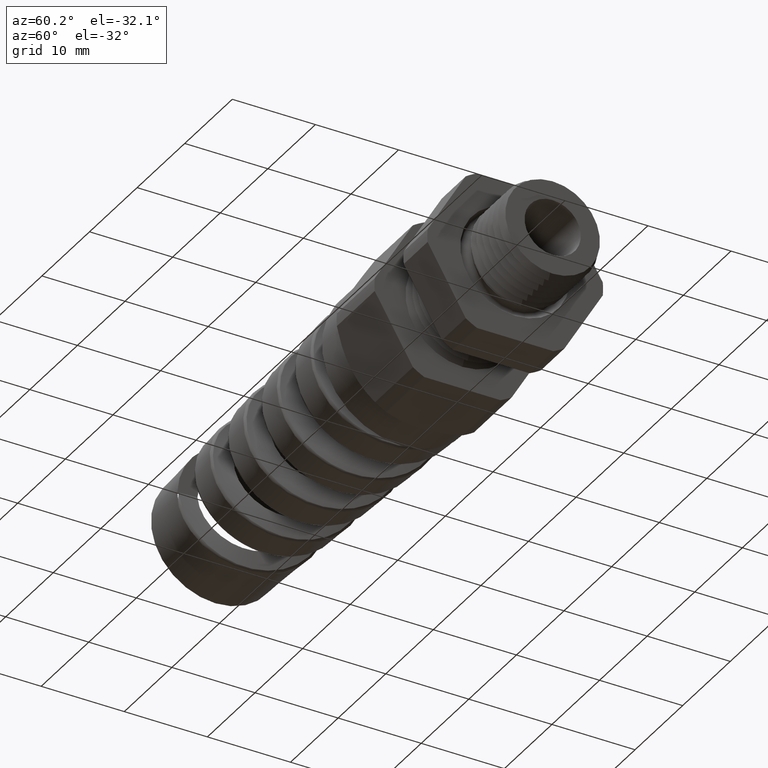
[diagram: clean part render]
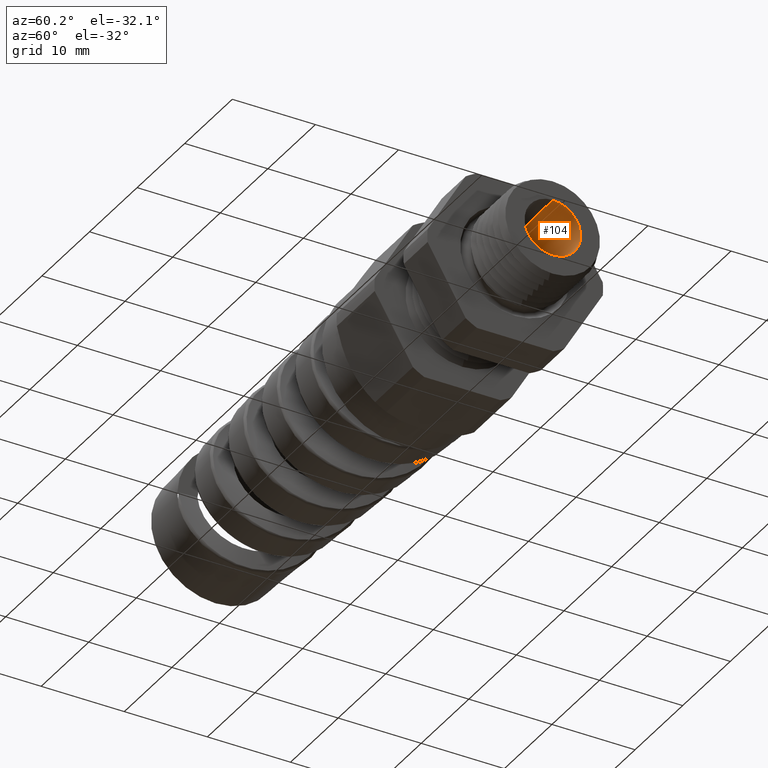
[diagram: same view with one face highlighted and labeled with its STEP entity id]
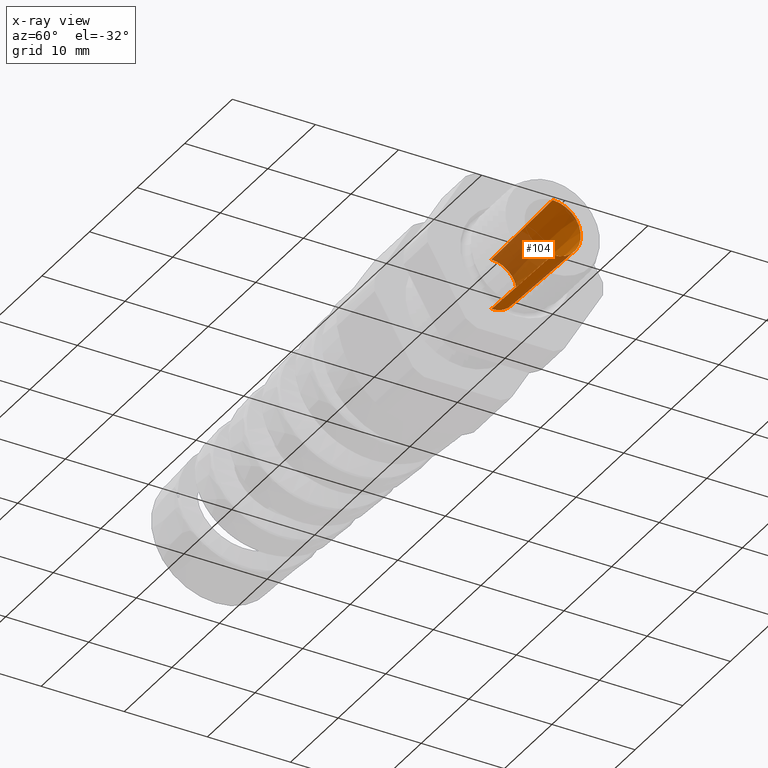
[diagram: x-ray of the same camera — body ghosted, the highlighted face saturated]
A machine part, auxiliary view. The second image highlights one B-rep face of the part: STEP entity #104.
The next image is the same camera in x-ray: the body ghosted, the highlighted face saturated — about 33% of this face is hidden behind the body in this view.
In plain terms, the highlighted conical surface has half-angle 1.5 deg.
Its self-contained STEP definition (entity closure, byte-faithful):
#99 = ORIENTED_EDGE ( 'NONE', *, *, #103, .F. ) ;
#100 = ORIENTED_EDGE ( 'NONE', *, *, #595, .F. ) ;
#101 = EDGE_LOOP ( 'NONE', ( #100, #99, #429, #133 ) ) ;
#103 = EDGE_CURVE ( 'NONE', #665, #591, #1021, .T. ) ;
#104 = ADVANCED_FACE ( 'NONE', ( #1022 ), #1013, .F. ) ;
#132 = EDGE_CURVE ( 'NONE', #658, #592, #1090, .T. ) ;
#133 = ORIENTED_EDGE ( 'NONE', *, *, #132, .T. ) ;
#429 = ORIENTED_EDGE ( 'NONE', *, *, #660, .T. ) ;
#591 = VERTEX_POINT ( 'NONE', #3348 ) ;
#592 = VERTEX_POINT ( 'NONE', #3347 ) ;
#595 = EDGE_CURVE ( 'NONE', #591, #592, #3345, .T. ) ;
#658 = VERTEX_POINT ( 'NONE', #3559 ) ;
#660 = EDGE_CURVE ( 'NONE', #665, #658, #3558, .T. ) ;
#665 = VERTEX_POINT ( 'NONE', #3601 ) ;
#1010 = DIRECTION ( 'NONE',  ( 0.0000000000000000000, 0.0000000000000000000, -1.000000000000000000 ) ) ;
#1011 = DIRECTION ( 'NONE',  ( 1.000000000000000000, 0.0000000000000000000, 0.0000000000000000000 ) ) ;
#1012 = AXIS2_PLACEMENT_3D ( 'NONE', #1015, #1011, #1010 ) ;
#1013 = CONICAL_SURFACE ( 'NONE', #1012, 0.1200000000000000000, 0.02617993877990812100 ) ;
#1015 = CARTESIAN_POINT ( 'NONE',  ( -0.5068503937007873300, 0.0000000000000000000, 0.0000000000000000000 ) ) ;
#1016 = DIRECTION ( 'NONE',  ( 0.0000000000000000000, 0.0000000000000000000, -1.000000000000000000 ) ) ;
#1017 = DIRECTION ( 'NONE',  ( 1.000000000000000000, 0.0000000000000000000, 0.0000000000000000000 ) ) ;
#1018 = CARTESIAN_POINT ( 'NONE',  ( -0.5068503937007873300, 0.0000000000000000000, 0.0000000000000000000 ) ) ;
#1019 = AXIS2_PLACEMENT_3D ( 'NONE', #1018, #1017, #1016 ) ;
#1021 = CIRCLE ( 'NONE', #1019, 0.1200000000000000000 ) ;
#1022 = FACE_OUTER_BOUND ( 'NONE', #101, .T. ) ;
#1087 = DIRECTION ( 'NONE',  ( 0.0000000000000000000, 0.0000000000000000000, -1.000000000000000000 ) ) ;
#1088 = DIRECTION ( 'NONE',  ( 1.000000000000000000, 0.0000000000000000000, 0.0000000000000000000 ) ) ;
#1089 = AXIS2_PLACEMENT_3D ( 'NONE', #1095, #1088, #1087 ) ;
#1090 = CIRCLE ( 'NONE', #1089, 0.1332723446567568900 ) ;
#1095 = CARTESIAN_POINT ( 'NONE',  ( -3.554250635557152700E-033, 0.0000000000000000000, 0.0000000000000000000 ) ) ;
#3342 = DIRECTION ( 'NONE',  ( 0.9996573249755573700, 3.205751595667422300E-018, 0.02617694830786633500 ) ) ;
#3343 = VECTOR ( 'NONE', #3342, 39.37007874015748100 ) ;
#3344 = CARTESIAN_POINT ( 'NONE',  ( -0.5068503937007873300, 1.469576158976823700E-017, 0.1200000000000000000 ) ) ;
#3345 = LINE ( 'NONE', #3344, #3343 ) ;
#3347 = CARTESIAN_POINT ( 'NONE',  ( -3.554250635557152700E-033, 1.632115502987601500E-017, 0.1332723446567568900 ) ) ;
#3348 = CARTESIAN_POINT ( 'NONE',  ( -0.5068503937007873300, 1.469576158976824000E-017, 0.1200000000000000200 ) ) ;
#3555 = DIRECTION ( 'NONE',  ( 0.9996573249755573700, 0.0000000000000000000, -0.02617694830786633500 ) ) ;
#3556 = VECTOR ( 'NONE', #3555, 39.37007874015748100 ) ;
#3557 = CARTESIAN_POINT ( 'NONE',  ( -0.5068503937007873300, 0.0000000000000000000, -0.1200000000000000000 ) ) ;
#3558 = LINE ( 'NONE', #3557, #3556 ) ;
#3559 = CARTESIAN_POINT ( 'NONE',  ( -3.554250635557152700E-033, 0.0000000000000000000, -0.1332723446567568900 ) ) ;
#3601 = CARTESIAN_POINT ( 'NONE',  ( -0.5068503937007873300, 0.0000000000000000000, -0.1200000000000000000 ) ) ;